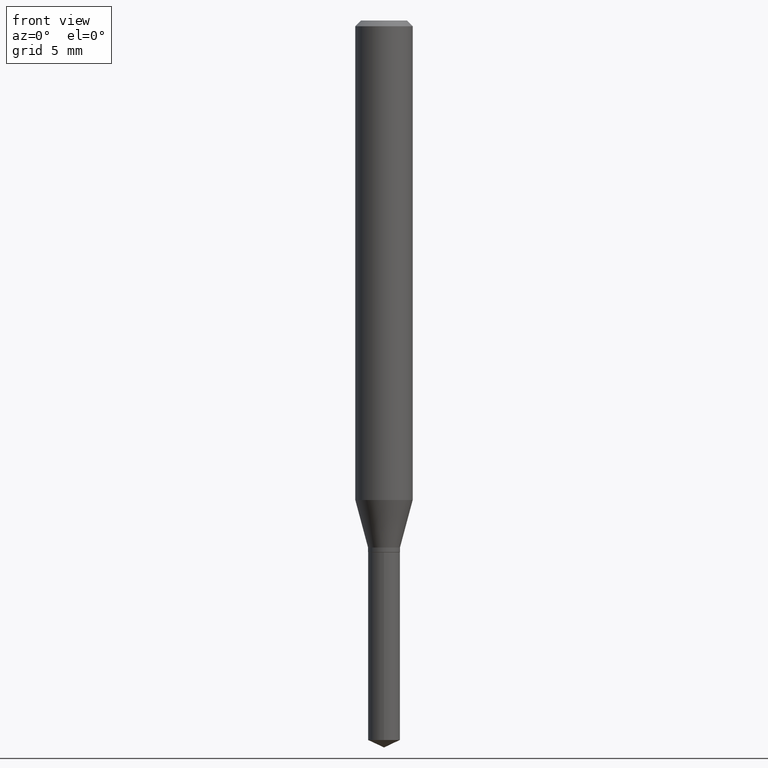
[diagram: clean part render]
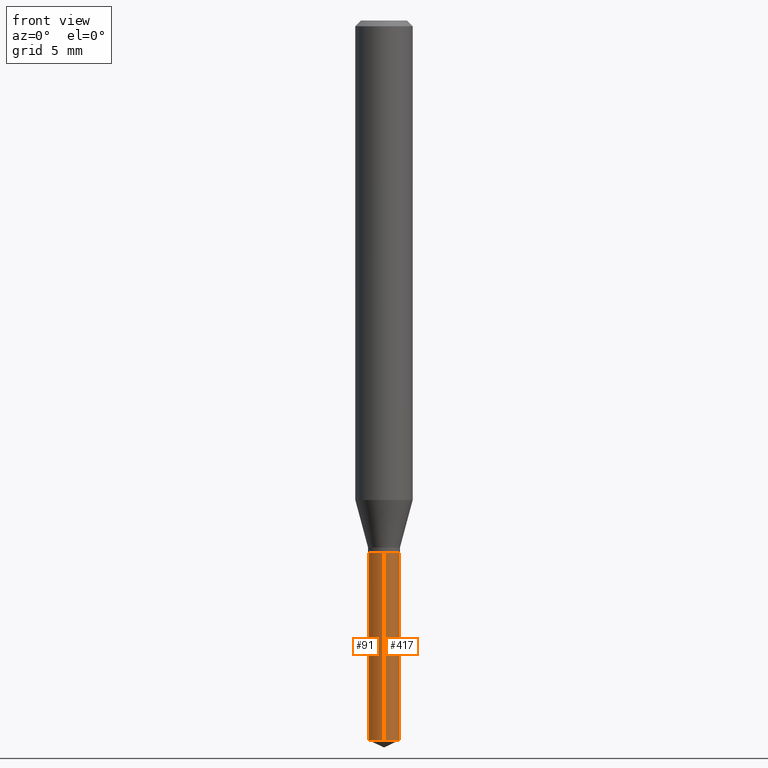
[diagram: same view with one multi-face feature highlighted, each face labeled with its STEP entity id]
A machine part, front view. The highlighted faces form ONE feature: a constant-radius fillet chain: 2 tangent blend faces with common blend radius 0.8344 mm. The faces share edges in the B-rep.
Their STEP definitions:
[1] entity #417 (Cylinder):
#22 = CIRCLE ( 'NONE', #104, 0.03284999999999999726 ) ;
#40 = DIRECTION ( 'NONE',  ( -2.445470214571802116E-29, 3.491479321953280158E-15, 1.000000000000000000 ) ) ;
#48 = VERTEX_POINT ( 'NONE', #450 ) ;
#104 = AXIS2_PLACEMENT_3D ( 'NONE', #302, #40, #381 ) ;
#121 = CARTESIAN_POINT ( 'NONE',  ( 3.621206228633116670E-29, -5.170121219570327445E-15, -1.480781793429608140 ) ) ;
#124 = ORIENTED_EDGE ( 'NONE', *, *, #279, .F. ) ;
#138 = DIRECTION ( 'NONE',  ( -2.445470214571802396E-29, 3.491479321953280158E-15, 1.000000000000000000 ) ) ;
#143 = CARTESIAN_POINT ( 'NONE',  ( -2.293903239619670800E-16, -0.03285000000000382059, -1.094499999999999806 ) ) ;
#162 = EDGE_CURVE ( 'NONE', #490, #287, #163, .T. ) ;
#163 = LINE ( 'NONE', #278, #223 ) ;
#191 = DIRECTION ( 'NONE',  ( -6.982962677686266711E-15, -1.000000000000000000, 0.000000000000000000 ) ) ;
#194 = VERTEX_POINT ( 'NONE', #427 ) ;
#201 = DIRECTION ( 'NONE',  ( -2.445470214571802396E-29, 3.491479321953280158E-15, 1.000000000000000000 ) ) ;
#210 = CARTESIAN_POINT ( 'NONE',  ( 2.676565608369631794E-29, -3.821426325363822773E-15, -1.094499999999999806 ) ) ;
#223 = VECTOR ( 'NONE', #201, 39.37007874015748143 ) ;
#226 = DIRECTION ( 'NONE',  ( -2.445470214571802116E-29, 3.491479321953280158E-15, 1.000000000000000000 ) ) ;
#256 = CARTESIAN_POINT ( 'NONE',  ( 2.334132886972291299E-16, 0.03284999999999617393, -1.094500000000000028 ) ) ;
#273 = EDGE_LOOP ( 'NONE', ( #378, #327, #419, #124 ) ) ;
#278 = CARTESIAN_POINT ( 'NONE',  ( 2.334132886972196142E-16, 0.03284999999999618087, -1.094500000000000028 ) ) ;
#279 = EDGE_CURVE ( 'NONE', #48, #194, #328, .T. ) ;
#284 = CARTESIAN_POINT ( 'NONE',  ( 2.334132886972290313E-16, 0.03284999999999482084, -1.480781793429608140 ) ) ;
#287 = VERTEX_POINT ( 'NONE', #256 ) ;
#302 = CARTESIAN_POINT ( 'NONE',  ( 2.676565608369631794E-29, -3.821426325363822773E-15, -1.094499999999999806 ) ) ;
#311 = DIRECTION ( 'NONE',  ( -2.445470214571802116E-29, 3.491479321953280158E-15, 1.000000000000000000 ) ) ;
#314 = VECTOR ( 'NONE', #138, 39.37007874015748143 ) ;
#320 = CYLINDRICAL_SURFACE ( 'NONE', #389, 0.03284999999999999726 ) ;
#327 = ORIENTED_EDGE ( 'NONE', *, *, #162, .T. ) ;
#328 = LINE ( 'NONE', #143, #314 ) ;
#332 = EDGE_CURVE ( 'NONE', #48, #490, #443, .T. ) ;
#349 = EDGE_CURVE ( 'NONE', #194, #287, #22, .T. ) ;
#351 = AXIS2_PLACEMENT_3D ( 'NONE', #121, #226, #191 ) ;
#355 = DIRECTION ( 'NONE',  ( -6.982962677686266711E-15, -1.000000000000000000, 4.158063917297204420E-15 ) ) ;
#378 = ORIENTED_EDGE ( 'NONE', *, *, #332, .T. ) ;
#381 = DIRECTION ( 'NONE',  ( -6.982962677686266711E-15, -1.000000000000000000, 4.158063917297204420E-15 ) ) ;
#389 = AXIS2_PLACEMENT_3D ( 'NONE', #210, #311, #355 ) ;
#399 = FACE_OUTER_BOUND ( 'NONE', #273, .T. ) ;
#417 = ADVANCED_FACE ( 'NONE', ( #399 ), #320, .T. ) ;
#419 = ORIENTED_EDGE ( 'NONE', *, *, #349, .F. ) ;
#427 = CARTESIAN_POINT ( 'NONE',  ( -2.293903239619670800E-16, -0.03285000000000382059, -1.094499999999999806 ) ) ;
#443 = CIRCLE ( 'NONE', #351, 0.03284999999999999726 ) ;
#450 = CARTESIAN_POINT ( 'NONE',  ( -2.293903239619575644E-16, -0.03285000000000516673, -1.480781793429608140 ) ) ;
#490 = VERTEX_POINT ( 'NONE', #284 ) ;
[2] entity #91 (Cylinder):
#48 = VERTEX_POINT ( 'NONE', #450 ) ;
#50 = DIRECTION ( 'NONE',  ( -6.982962677686266711E-15, -1.000000000000000000, 4.158063917297204420E-15 ) ) ;
#56 = CARTESIAN_POINT ( 'NONE',  ( 2.676565608369631794E-29, -3.821426325363822773E-15, -1.094499999999999806 ) ) ;
#59 = AXIS2_PLACEMENT_3D ( 'NONE', #453, #479, #171 ) ;
#84 = CIRCLE ( 'NONE', #59, 0.03284999999999999726 ) ;
#91 = ADVANCED_FACE ( 'NONE', ( #392 ), #95, .T. ) ;
#95 = CYLINDRICAL_SURFACE ( 'NONE', #460, 0.03284999999999999726 ) ;
#126 = ORIENTED_EDGE ( 'NONE', *, *, #439, .F. ) ;
#130 = DIRECTION ( 'NONE',  ( -6.982962677686266711E-15, -1.000000000000000000, 4.158063917297204420E-15 ) ) ;
#138 = DIRECTION ( 'NONE',  ( -2.445470214571802396E-29, 3.491479321953280158E-15, 1.000000000000000000 ) ) ;
#143 = CARTESIAN_POINT ( 'NONE',  ( -2.293903239619670800E-16, -0.03285000000000382059, -1.094499999999999806 ) ) ;
#162 = EDGE_CURVE ( 'NONE', #490, #287, #163, .T. ) ;
#163 = LINE ( 'NONE', #278, #223 ) ;
#171 = DIRECTION ( 'NONE',  ( -6.982962677686266711E-15, -1.000000000000000000, 0.000000000000000000 ) ) ;
#194 = VERTEX_POINT ( 'NONE', #427 ) ;
#199 = CARTESIAN_POINT ( 'NONE',  ( 2.676565608369631794E-29, -3.821426325363822773E-15, -1.094499999999999806 ) ) ;
#201 = DIRECTION ( 'NONE',  ( -2.445470214571802396E-29, 3.491479321953280158E-15, 1.000000000000000000 ) ) ;
#214 = DIRECTION ( 'NONE',  ( -2.445470214571802116E-29, 3.491479321953280158E-15, 1.000000000000000000 ) ) ;
#223 = VECTOR ( 'NONE', #201, 39.37007874015748143 ) ;
#232 = ORIENTED_EDGE ( 'NONE', *, *, #279, .T. ) ;
#244 = DIRECTION ( 'NONE',  ( -2.445470214571802116E-29, 3.491479321953280158E-15, 1.000000000000000000 ) ) ;
#256 = CARTESIAN_POINT ( 'NONE',  ( 2.334132886972291299E-16, 0.03284999999999617393, -1.094500000000000028 ) ) ;
#278 = CARTESIAN_POINT ( 'NONE',  ( 2.334132886972196142E-16, 0.03284999999999618087, -1.094500000000000028 ) ) ;
#279 = EDGE_CURVE ( 'NONE', #48, #194, #328, .T. ) ;
#282 = AXIS2_PLACEMENT_3D ( 'NONE', #199, #214, #50 ) ;
#284 = CARTESIAN_POINT ( 'NONE',  ( 2.334132886972290313E-16, 0.03284999999999482084, -1.480781793429608140 ) ) ;
#287 = VERTEX_POINT ( 'NONE', #256 ) ;
#307 = CIRCLE ( 'NONE', #282, 0.03284999999999999726 ) ;
#314 = VECTOR ( 'NONE', #138, 39.37007874015748143 ) ;
#328 = LINE ( 'NONE', #143, #314 ) ;
#374 = EDGE_CURVE ( 'NONE', #490, #48, #84, .T. ) ;
#392 = FACE_OUTER_BOUND ( 'NONE', #422, .T. ) ;
#413 = ORIENTED_EDGE ( 'NONE', *, *, #374, .T. ) ;
#422 = EDGE_LOOP ( 'NONE', ( #440, #413, #232, #126 ) ) ;
#427 = CARTESIAN_POINT ( 'NONE',  ( -2.293903239619670800E-16, -0.03285000000000382059, -1.094499999999999806 ) ) ;
#439 = EDGE_CURVE ( 'NONE', #287, #194, #307, .T. ) ;
#440 = ORIENTED_EDGE ( 'NONE', *, *, #162, .F. ) ;
#450 = CARTESIAN_POINT ( 'NONE',  ( -2.293903239619575644E-16, -0.03285000000000516673, -1.480781793429608140 ) ) ;
#453 = CARTESIAN_POINT ( 'NONE',  ( 3.621206228633116670E-29, -5.170121219570327445E-15, -1.480781793429608140 ) ) ;
#460 = AXIS2_PLACEMENT_3D ( 'NONE', #56, #244, #130 ) ;
#479 = DIRECTION ( 'NONE',  ( -2.445470214571802116E-29, 3.491479321953280158E-15, 1.000000000000000000 ) ) ;
#490 = VERTEX_POINT ( 'NONE', #284 ) ;